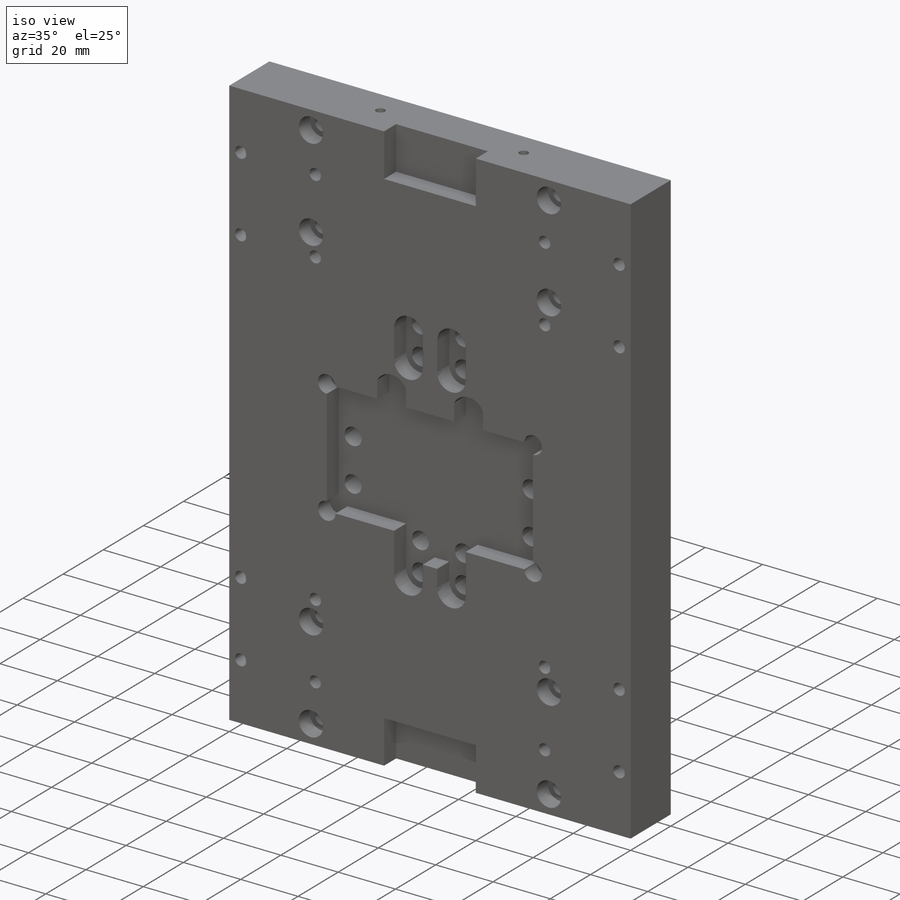
[diagram: iso view]
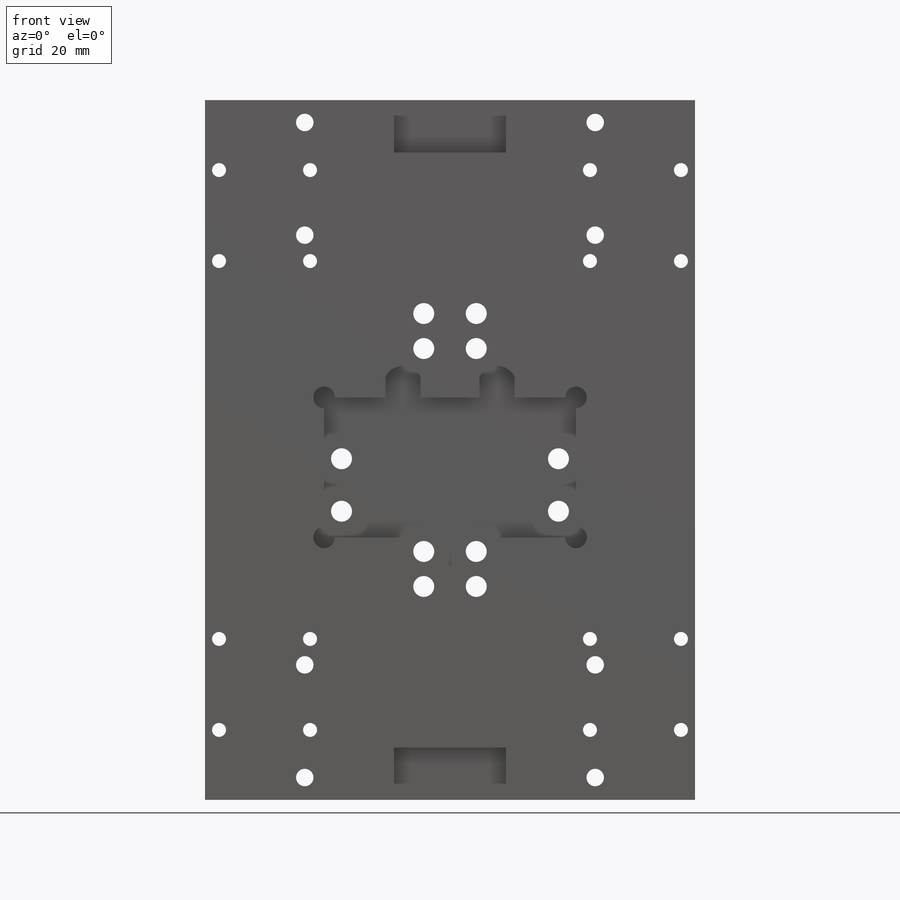
[diagram: front view]
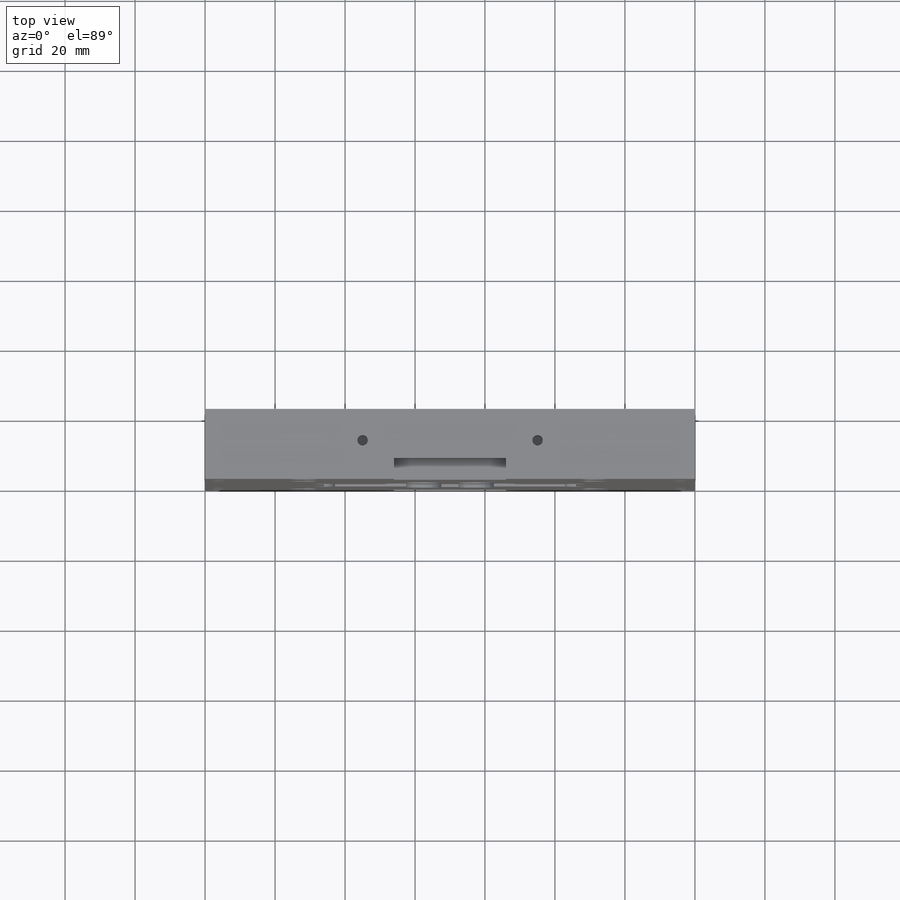
[diagram: top view]
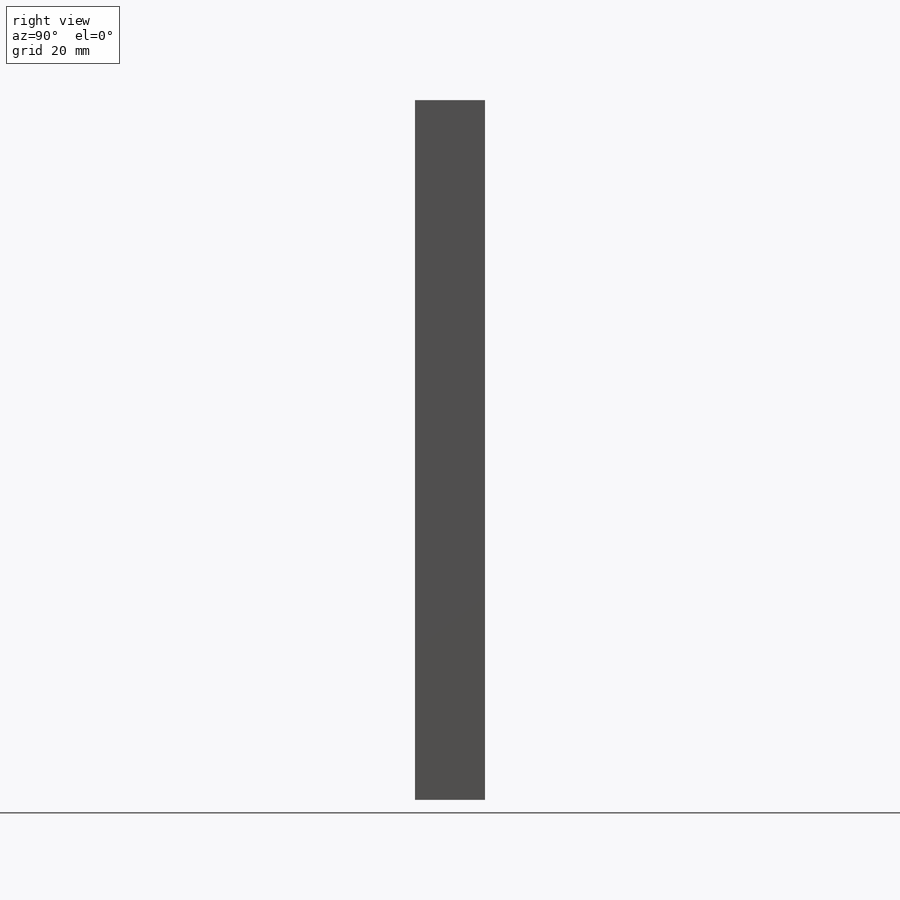
[diagram: right view]
SOLIDWORKS PART (.sldprt)
format: sldprt  version: not decoded by parser v0  size: 1,251,840 bytes
history: native  units: mm
features: sketch x12, cut_extrude x11, move_body x4, material x1, extrude x1 (+12 scaffold rows collapsed; 2 parser-record rows omitted)
feature tree (43):
  scaffold x12  (default folders/planes/origin — collapsed)
  material  "7079 Alloy"
  sketch  "Sketch1"  dims[c1.D3=~6.899571mm c1.D1=140.0mm c1.D2=200.0mm c2.D3=88.0mm]
  extrude  "Extrude1"  Depth=20mm
  sketch  "Sketch2"  dims[c1.D1=36.0mm c1.D2=36.0mm c1.D3=30.0mm c2.D1=4.0mm]
  cut_extrude  "Cut-Extrude2"  Depth=6mm
  sketch  "Sketch3"  dims[D1=4.0mm]
  cut_extrude  "Cut-Extrude3"  Depth=6.5mm
  sketch  "Sketch4"  dims[D1=3.0mm]
  cut_extrude  "Cut-Extrude5"  Depth=4.5mm
  sketch  "Sketch6"  dims[D1=16.0mm D2=16.0mm D3=15.0mm]
  cut_extrude  "Cut-Extrude7"  Depth=6mm
  sketch  "Sketch7"  dims[D1=15.0mm D2=16.0mm D3=16.0mm]
  cut_extrude  "Cut-Extrude8"  Depth=6mm
  sketch  "Sketch9"
  cut_extrude  "Cut-Extrude10"  Depth=2mm
  sketch  "Sketch10"  dims[c1.D1=~1.831915mm c1.D3=~3.858395mm c2.D1=5.0mm c2.D2=5.0mm c2.D3=10.0mm c3.D1=10.0mm]
  cut_extrude  "Cut-Extrude11"  Depth=20mm
  sketch  "Sketch11"  dims[D1=4.0mm]
  cut_extrude  "Cut-Extrude16"  Depth=6mm
  sketch  "Sketch12"  dims[D1=~4.725836mm]
  cut_extrude  "Cut-Extrude17"  Depth=5.5mm
  sketch  "Sketch14"  dims[D1=~0.877294mm]
  cut_extrude  "Cut-Extrude18"  Depth=10mm
  sketch  "Sketch15"  dims[D1=3.0mm]
  cut_extrude  "Cut-Extrude19"  Depth=6mm
  move_body  "Body-Move/Copy1"
  parser-record x2  (decoder bookkeeping rows leaked as tree rows — omitted from the tree; the rows remain in map.json)
  move_body  "Body-Move/Copy2"
  move_body  "Body-Move/Copy3"
  move_body  "Body-Move/Copy4"
decode coverage: 23 of 28 modeling features carry decoded parameters
note: ~ marks probable driven/reference dimensions
note: suppression state not decoded; provenance and decode notes live in map.json
